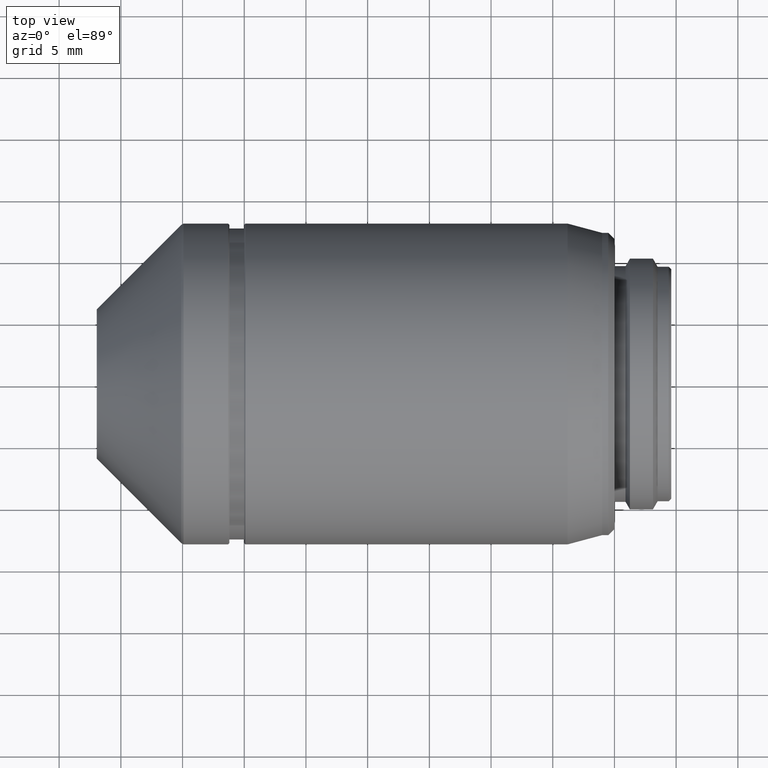
[diagram: clean part render]
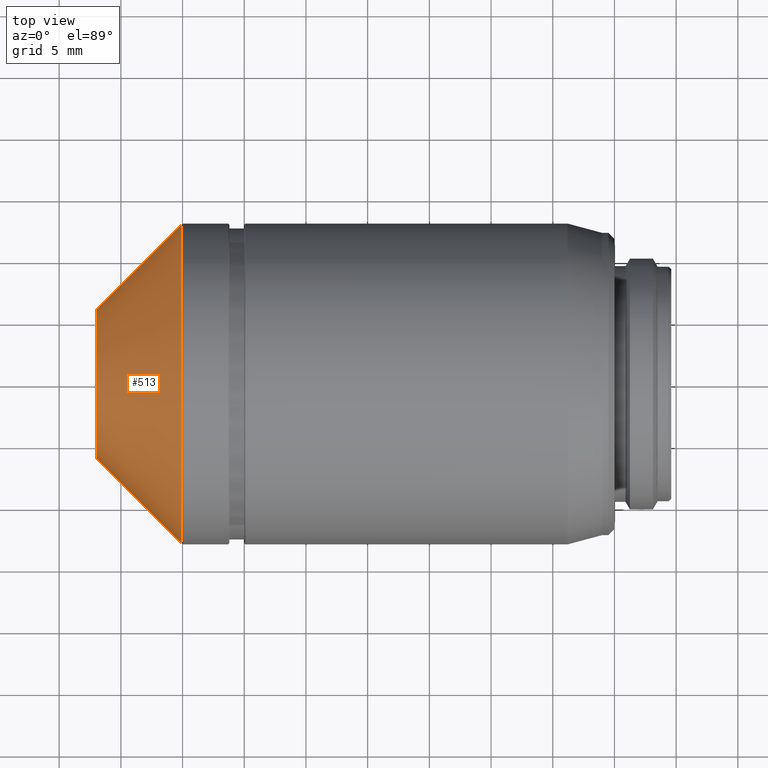
[diagram: same view with one face highlighted and labeled with its STEP entity id]
A machine part, top view. The second image highlights one B-rep face of the part: STEP entity #513.
In plain terms, the highlighted conical surface has half-angle 45 deg.
Its self-contained STEP definition (entity closure, byte-faithful):
#8 = CONICAL_SURFACE ( 'NONE', #169, 12.90000000000000036, 0.7853981633974476129 ) ;
#57 = ORIENTED_EDGE ( 'NONE', *, *, #886, .F. ) ;
#95 = EDGE_CURVE ( 'NONE', #872, #1105, #498, .T. ) ;
#169 = AXIS2_PLACEMENT_3D ( 'NONE', #946, #839, #389 ) ;
#198 = LINE ( 'NONE', #1240, #873 ) ;
#260 = CARTESIAN_POINT ( 'NONE',  ( 2.900000000000059863, -12.90000000000000036, 0.000000000000000000 ) ) ;
#301 = ORIENTED_EDGE ( 'NONE', *, *, #874, .T. ) ;
#311 = EDGE_LOOP ( 'NONE', ( #658, #317, #57, #301 ) ) ;
#317 = ORIENTED_EDGE ( 'NONE', *, *, #95, .F. ) ;
#378 = FACE_OUTER_BOUND ( 'NONE', #311, .T. ) ;
#389 = DIRECTION ( 'NONE',  ( 2.017120320903263949E-16, -1.000000000000000000, 0.000000000000000000 ) ) ;
#463 = VERTEX_POINT ( 'NONE', #822 ) ;
#471 = CARTESIAN_POINT ( 'NONE',  ( 2.900000000000059863, 12.90000000000000036, -1.579794370900089880E-15 ) ) ;
#474 = CARTESIAN_POINT ( 'NONE',  ( -3.949999999999940670, -6.049999999999999822, 0.000000000000000000 ) ) ;
#496 = VERTEX_POINT ( 'NONE', #474 ) ;
#498 = CIRCLE ( 'NONE', #1127, 12.90000000000000036 ) ;
#502 = DIRECTION ( 'NONE',  ( 0.7071067811865474617, 0.7071067811865474617, -8.659560562354911904E-17 ) ) ;
#513 = ADVANCED_FACE ( 'NONE', ( #378 ), #8, .T. ) ;
#520 = EDGE_CURVE ( 'NONE', #496, #1105, #860, .T. ) ;
#585 = DIRECTION ( 'NONE',  ( 1.000000000000000000, 1.860059517696599800E-16, 0.000000000000000000 ) ) ;
#658 = ORIENTED_EDGE ( 'NONE', *, *, #520, .T. ) ;
#664 = CARTESIAN_POINT ( 'NONE',  ( 2.900000000000059863, -12.90000000000000036, 0.000000000000000000 ) ) ;
#736 = AXIS2_PLACEMENT_3D ( 'NONE', #977, #1161, #971 ) ;
#769 = CARTESIAN_POINT ( 'NONE',  ( 2.900000000000059863, -6.528808907115039310E-15, 0.000000000000000000 ) ) ;
#807 = CIRCLE ( 'NONE', #736, 6.049999999999999822 ) ;
#822 = CARTESIAN_POINT ( 'NONE',  ( -3.949999999999949996, 6.049999999999999822, -7.409113134841490466E-16 ) ) ;
#839 = DIRECTION ( 'NONE',  ( 1.000000000000000000, 1.860059517696599800E-16, 0.000000000000000000 ) ) ;
#860 = LINE ( 'NONE', #664, #1048 ) ;
#872 = VERTEX_POINT ( 'NONE', #471 ) ;
#873 = VECTOR ( 'NONE', #502, 1000.000000000000114 ) ;
#874 = EDGE_CURVE ( 'NONE', #463, #496, #807, .T. ) ;
#886 = EDGE_CURVE ( 'NONE', #463, #872, #198, .T. ) ;
#946 = CARTESIAN_POINT ( 'NONE',  ( 2.900000000000059863, -6.528808907115039310E-15, 0.000000000000000000 ) ) ;
#971 = DIRECTION ( 'NONE',  ( -1.433655765270088601E-16, 1.000000000000000000, 0.000000000000000000 ) ) ;
#977 = CARTESIAN_POINT ( 'NONE',  ( -3.949999999999949996, -7.802949676737220387E-15, 0.000000000000000000 ) ) ;
#1048 = VECTOR ( 'NONE', #1147, 1000.000000000000000 ) ;
#1105 = VERTEX_POINT ( 'NONE', #260 ) ;
#1127 = AXIS2_PLACEMENT_3D ( 'NONE', #769, #585, #1150 ) ;
#1147 = DIRECTION ( 'NONE',  ( 0.7071067811865480168, -0.7071067811865470176, 0.000000000000000000 ) ) ;
#1150 = DIRECTION ( 'NONE',  ( -2.017120320903263949E-16, 1.000000000000000000, 0.000000000000000000 ) ) ;
#1161 = DIRECTION ( 'NONE',  ( 1.000000000000000000, 1.860059517696599800E-16, 0.000000000000000000 ) ) ;
#1240 = CARTESIAN_POINT ( 'NONE',  ( 2.900000000000059863, 12.90000000000000036, -1.579794370900089880E-15 ) ) ;